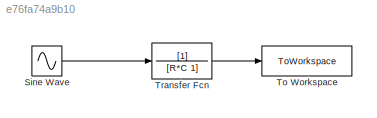
MODEL slx_e76fa74a9b10
KIND model
CONFIG AbsTol = auto
CONFIG EnableMultiTasking = off
CONFIG FixedStep = auto
CONFIG MaxStep = sineMaxStepSize
CONFIG MinStep = auto
CONFIG RelTol = 1e-3
CONFIG SampleTimeConstraint = Unconstrained
CONFIG SolverName = VariableStepAuto
CONFIG StartTime = 0.0
CONFIG StopTime = sineSimTime
BLOCK [Sin] Sine Wave
  Amplitude = sineAmplitude
  Bias = sineBias
  Frequency = sineFreq
  Ports = [0, 1]
  SampleTime = 0
BLOCK [ToWorkspace] To Workspace
  FixptAsFi = on
  MaxDataPoints = inf
  Ports = [1]
  SampleTime = -1
  SaveFormat = Timeseries
  VariableName = simulinkSineResponse
BLOCK [TransferFcn] Transfer Fcn
  Denominator = [R*C 1]
LINE Sine Wave:1 -> Transfer Fcn:1
LINE Transfer Fcn:1 -> To Workspace:1
